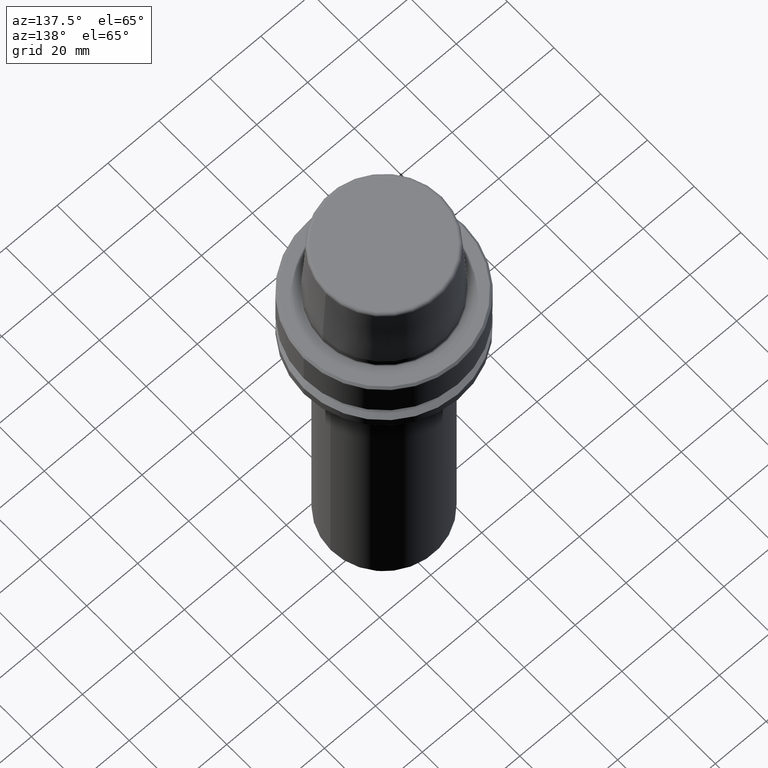
[diagram: clean part render]
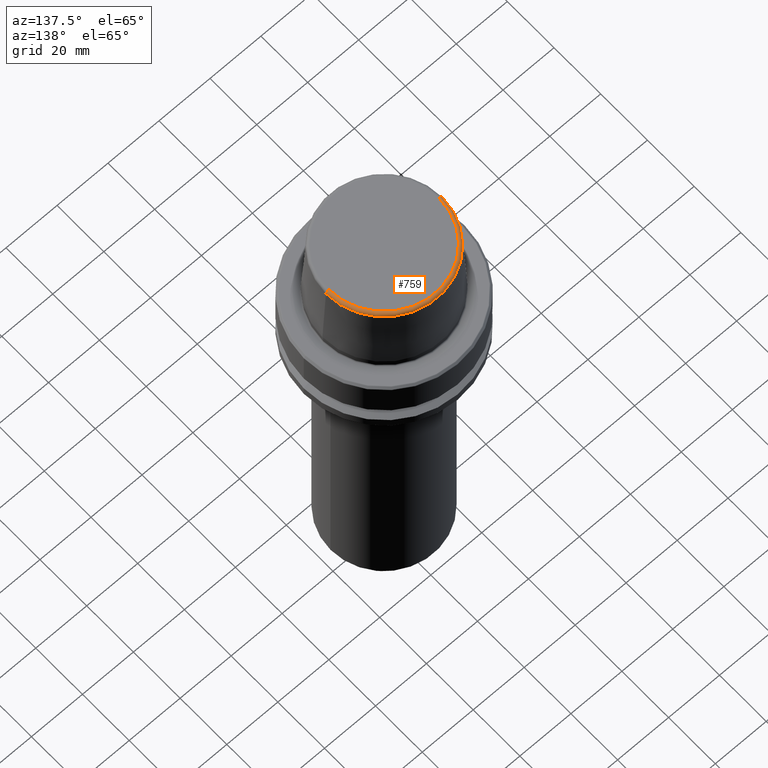
[diagram: same view with one face highlighted and labeled with its STEP entity id]
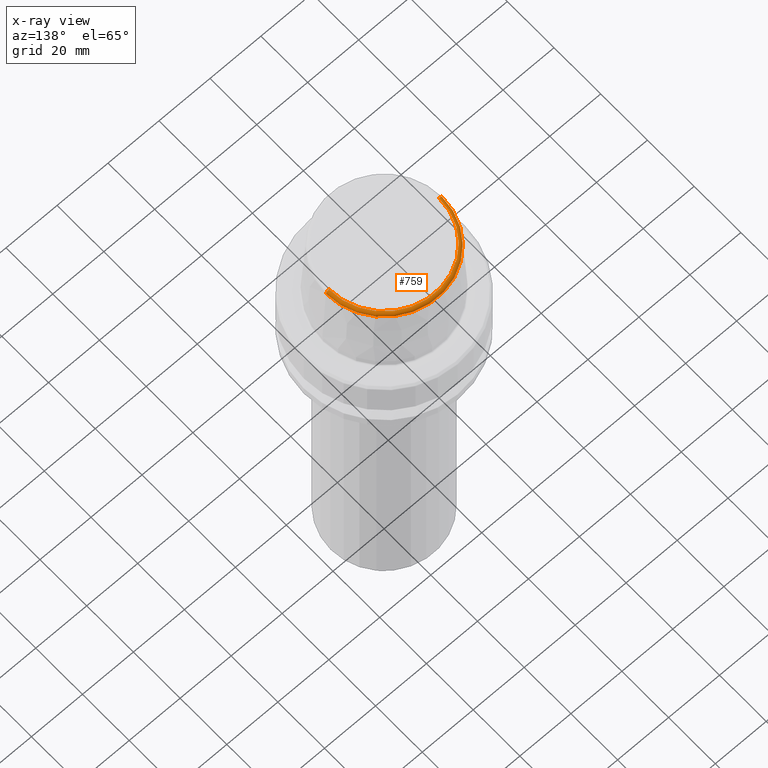
[diagram: x-ray of the same camera — body ghosted, the highlighted face saturated]
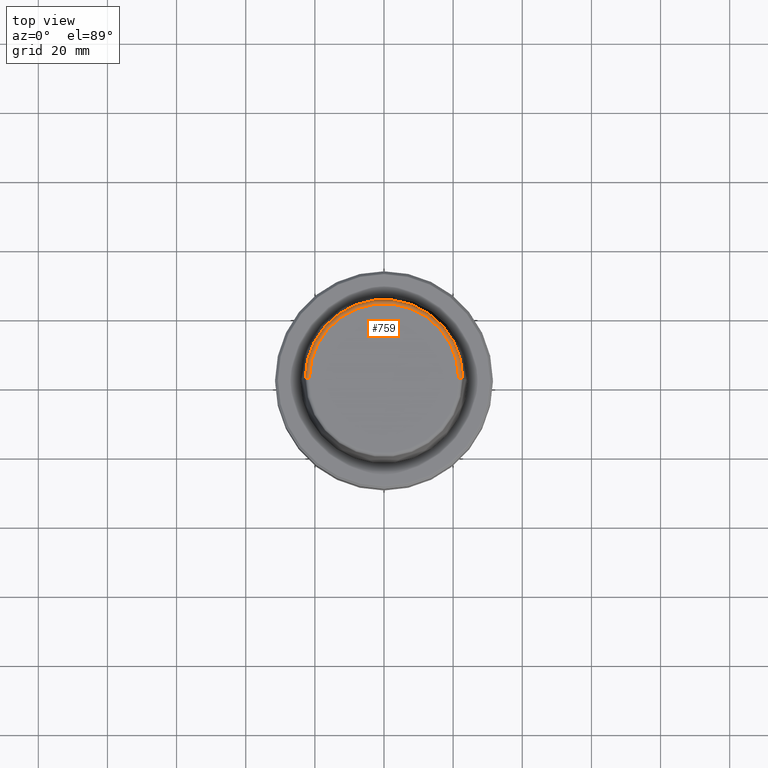
[diagram: same view with one face highlighted and labeled with its STEP entity id]
A machine part, auxiliary view. The second image highlights one B-rep face of the part: STEP entity #759.
The next image is the same camera in x-ray: the body ghosted, the highlighted face saturated — about 0% of this face is hidden behind the body in this view.
A second angle (top view) of the same face is appended — the face is thin or edge-on in the first view.
In plain terms, the highlighted toroidal blend (fillet) surface has major radius 21.5811 mm and minor (blend) radius 1.2 mm.
Its self-contained STEP definition (entity closure, byte-faithful):
#7 = ORIENTED_EDGE ( 'NONE', *, *, #88, .T. ) ;
#23 = VERTEX_POINT ( 'NONE', #30 ) ;
#30 = CARTESIAN_POINT ( 'NONE',  ( -22.77957961851797100, 0.0000000000000000000, 30.76004333261571900 ) ) ;
#47 = DIRECTION ( 'NONE',  ( -0.0000000000000000000, -0.0000000000000000000, 1.000000000000000000 ) ) ;
#74 = CARTESIAN_POINT ( 'NONE',  ( 22.77957961851797100, 2.874852597157249900E-015, 30.76004333261571900 ) ) ;
#88 = EDGE_CURVE ( 'NONE', #700, #23, #282, .T. ) ;
#89 = CIRCLE ( 'NONE', #161, 1.200000000000003100 ) ;
#115 = DIRECTION ( 'NONE',  ( -1.000000000000000000, 1.224646799147353200E-016, 0.0000000000000000000 ) ) ;
#120 = EDGE_LOOP ( 'NONE', ( #7, #187, #595, #742 ) ) ;
#125 = CARTESIAN_POINT ( 'NONE',  ( -21.58108272732117100, 2.642920388414810300E-015, 30.69999999999999200 ) ) ;
#161 = AXIS2_PLACEMENT_3D ( 'NONE', #125, #1001, #115 ) ;
#172 = DIRECTION ( 'NONE',  ( 0.0000000000000000000, 0.0000000000000000000, -1.000000000000000000 ) ) ;
#179 = DIRECTION ( 'NONE',  ( 1.000000000000000000, 0.0000000000000000000, 0.0000000000000000000 ) ) ;
#186 = CIRCLE ( 'NONE', #851, 21.58108272732117100 ) ;
#187 = ORIENTED_EDGE ( 'NONE', *, *, #524, .T. ) ;
#235 = TOROIDAL_SURFACE ( 'NONE', #570, 21.58108272732117100, 1.200000000000003100 ) ;
#244 = AXIS2_PLACEMENT_3D ( 'NONE', #375, #890, #829 ) ;
#282 = CIRCLE ( 'NONE', #244, 22.77957961851797100 ) ;
#362 = CIRCLE ( 'NONE', #1000, 1.200000000000003100 ) ;
#375 = CARTESIAN_POINT ( 'NONE',  ( 0.0000000000000000000, 0.0000000000000000000, 30.76004333261571900 ) ) ;
#430 = DIRECTION ( 'NONE',  ( 1.000000000000000000, 0.0000000000000000000, 0.0000000000000000000 ) ) ;
#505 = DIRECTION ( 'NONE',  ( -0.0000000000000000000, -0.0000000000000000000, 1.000000000000000000 ) ) ;
#524 = EDGE_CURVE ( 'NONE', #23, #795, #89, .T. ) ;
#558 = CARTESIAN_POINT ( 'NONE',  ( 0.0000000000000000000, 0.0000000000000000000, 30.69999999999999200 ) ) ;
#570 = AXIS2_PLACEMENT_3D ( 'NONE', #558, #505, #430 ) ;
#595 = ORIENTED_EDGE ( 'NONE', *, *, #931, .F. ) ;
#643 = EDGE_CURVE ( 'NONE', #700, #1126, #362, .T. ) ;
#656 = CARTESIAN_POINT ( 'NONE',  ( 0.0000000000000000000, 0.0000000000000000000, 31.89999999999999900 ) ) ;
#700 = VERTEX_POINT ( 'NONE', #74 ) ;
#742 = ORIENTED_EDGE ( 'NONE', *, *, #643, .F. ) ;
#759 = ADVANCED_FACE ( 'NONE', ( #1244 ), #235, .T. ) ;
#795 = VERTEX_POINT ( 'NONE', #902 ) ;
#829 = DIRECTION ( 'NONE',  ( 1.000000000000000000, 0.0000000000000000000, 0.0000000000000000000 ) ) ;
#830 = DIRECTION ( 'NONE',  ( 0.0000000000000000000, -1.000000000000000000, 0.0000000000000000000 ) ) ;
#851 = AXIS2_PLACEMENT_3D ( 'NONE', #656, #47, #179 ) ;
#878 = CARTESIAN_POINT ( 'NONE',  ( 21.58108272732117100, 0.0000000000000000000, 31.89999999999999900 ) ) ;
#890 = DIRECTION ( 'NONE',  ( -0.0000000000000000000, -0.0000000000000000000, 1.000000000000000000 ) ) ;
#902 = CARTESIAN_POINT ( 'NONE',  ( -21.58108272732117100, 2.716307157494421400E-015, 31.89999999999999900 ) ) ;
#931 = EDGE_CURVE ( 'NONE', #1126, #795, #186, .T. ) ;
#1000 = AXIS2_PLACEMENT_3D ( 'NONE', #1064, #830, #172 ) ;
#1001 = DIRECTION ( 'NONE',  ( 1.224646799147353200E-016, 1.000000000000000000, 0.0000000000000000000 ) ) ;
#1064 = CARTESIAN_POINT ( 'NONE',  ( 21.58108272732117100, 0.0000000000000000000, 30.69999999999999200 ) ) ;
#1126 = VERTEX_POINT ( 'NONE', #878 ) ;
#1244 = FACE_OUTER_BOUND ( 'NONE', #120, .T. ) ;